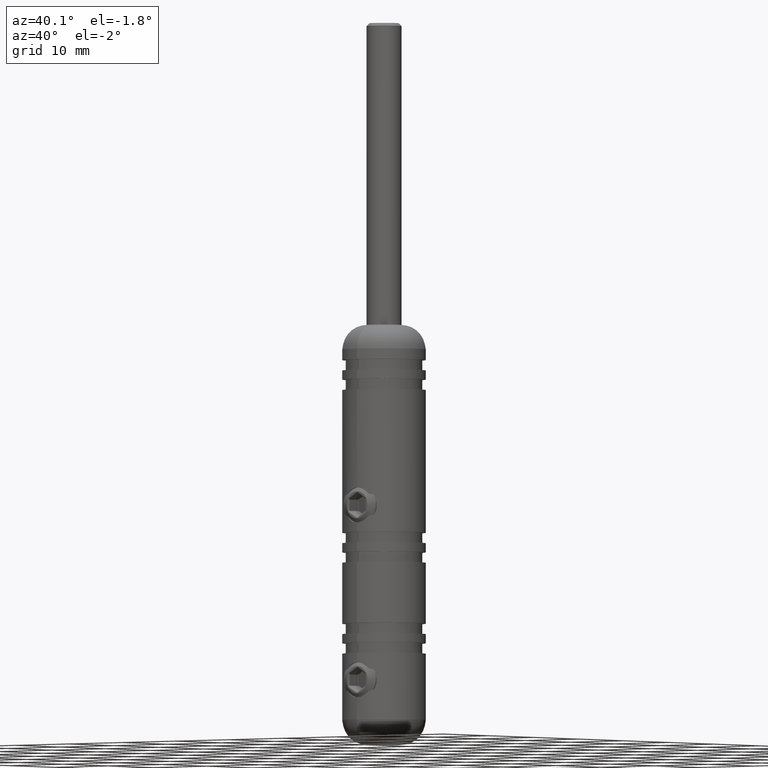
[diagram: clean part render]
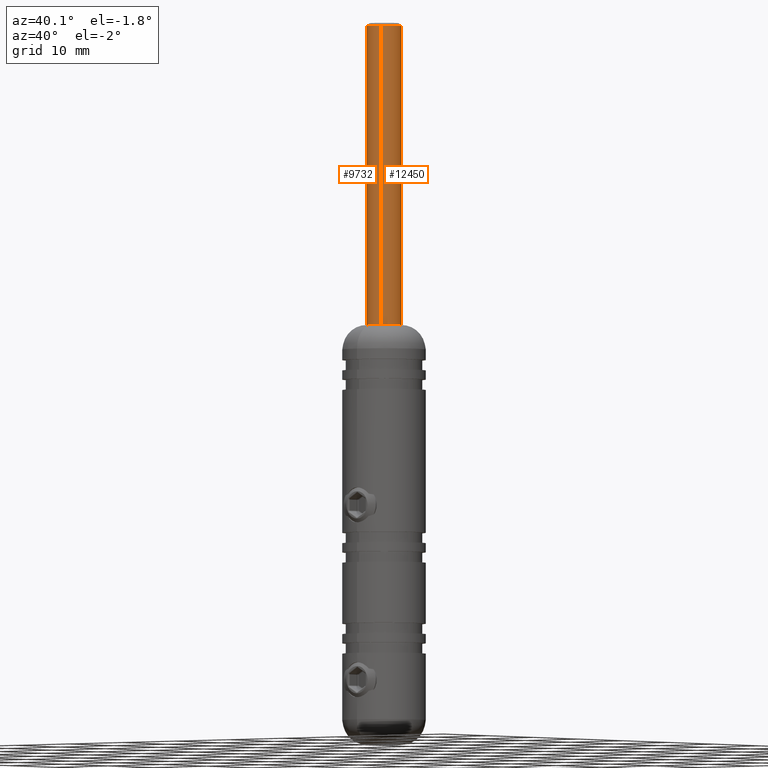
[diagram: same view with one multi-face feature highlighted, each face labeled with its STEP entity id]
A machine part, auxiliary view. The highlighted faces form ONE feature: a constant-radius fillet chain: 2 tangent blend faces with common blend radius 2.5 mm. The faces share edges in the B-rep.
Their STEP definitions:
[1] entity #12450 (Cylinder):
#819 = VERTEX_POINT ( 'NONE', #16076 ) ;
#853 = VERTEX_POINT ( 'NONE', #15140 ) ;
#1014 = DIRECTION ( 'NONE',  ( 1.000000000000000000, 0.0000000000000000000, 0.0000000000000000000 ) ) ;
#1391 = ORIENTED_EDGE ( 'NONE', *, *, #16331, .T. ) ;
#1557 = CARTESIAN_POINT ( 'NONE',  ( 2.499999999999995100, 0.0000000000000000000, -58.74999999999968000 ) ) ;
#1652 = DIRECTION ( 'NONE',  ( -1.000000000000000000, 0.0000000000000000000, 0.0000000000000000000 ) ) ;
#1855 = FACE_OUTER_BOUND ( 'NONE', #2814, .T. ) ;
#1884 = EDGE_CURVE ( 'NONE', #13728, #3763, #8892, .T. ) ;
#2554 = LINE ( 'NONE', #5790, #5568 ) ;
#2814 = EDGE_LOOP ( 'NONE', ( #9331, #1391, #12758, #15391 ) ) ;
#3095 = LINE ( 'NONE', #5102, #7254 ) ;
#3763 = VERTEX_POINT ( 'NONE', #15851 ) ;
#4789 = DIRECTION ( 'NONE',  ( 0.0000000000000000000, 0.0000000000000000000, 1.000000000000000000 ) ) ;
#5102 = CARTESIAN_POINT ( 'NONE',  ( 2.499999999999995100, 0.0000000000000000000, 0.0000000000000000000 ) ) ;
#5568 = VECTOR ( 'NONE', #14694, 1000.000000000000000 ) ;
#5790 = CARTESIAN_POINT ( 'NONE',  ( -2.499999999999995100, 3.061616997868361000E-016, 0.0000000000000000000 ) ) ;
#6195 = AXIS2_PLACEMENT_3D ( 'NONE', #7397, #4789, #1014 ) ;
#6248 = CYLINDRICAL_SURFACE ( 'NONE', #6195, 2.499999999999995100 ) ;
#6485 = EDGE_CURVE ( 'NONE', #13728, #853, #3095, .T. ) ;
#6708 = DIRECTION ( 'NONE',  ( 1.000000000000000000, 0.0000000000000000000, 0.0000000000000000000 ) ) ;
#7254 = VECTOR ( 'NONE', #9258, 1000.000000000000000 ) ;
#7397 = CARTESIAN_POINT ( 'NONE',  ( 0.0000000000000000000, 0.0000000000000000000, 0.0000000000000000000 ) ) ;
#8892 = CIRCLE ( 'NONE', #10631, 2.499999999999995100 ) ;
#9175 = DIRECTION ( 'NONE',  ( 0.0000000000000000000, 0.0000000000000000000, 1.000000000000000000 ) ) ;
#9258 = DIRECTION ( 'NONE',  ( 0.0000000000000000000, 0.0000000000000000000, 1.000000000000000000 ) ) ;
#9331 = ORIENTED_EDGE ( 'NONE', *, *, #1884, .T. ) ;
#10631 = AXIS2_PLACEMENT_3D ( 'NONE', #14321, #9175, #6708 ) ;
#12450 = ADVANCED_FACE ( 'NONE', ( #1855 ), #6248, .T. ) ;
#12758 = ORIENTED_EDGE ( 'NONE', *, *, #15458, .T. ) ;
#13162 = CARTESIAN_POINT ( 'NONE',  ( 0.0000000000000000000, 0.0000000000000000000, -0.3999999999999975800 ) ) ;
#13220 = DIRECTION ( 'NONE',  ( 0.0000000000000000000, 0.0000000000000000000, -1.000000000000000000 ) ) ;
#13728 = VERTEX_POINT ( 'NONE', #1557 ) ;
#14321 = CARTESIAN_POINT ( 'NONE',  ( 0.0000000000000000000, 0.0000000000000000000, -58.74999999999968000 ) ) ;
#14694 = DIRECTION ( 'NONE',  ( 0.0000000000000000000, 0.0000000000000000000, 1.000000000000000000 ) ) ;
#15085 = AXIS2_PLACEMENT_3D ( 'NONE', #13162, #13220, #1652 ) ;
#15140 = CARTESIAN_POINT ( 'NONE',  ( 2.500000000000000400, 0.0000000000000000000, -0.3999999999999975800 ) ) ;
#15391 = ORIENTED_EDGE ( 'NONE', *, *, #6485, .F. ) ;
#15458 = EDGE_CURVE ( 'NONE', #819, #853, #15774, .T. ) ;
#15774 = CIRCLE ( 'NONE', #15085, 2.499999999999995100 ) ;
#15851 = CARTESIAN_POINT ( 'NONE',  ( -2.500000000000000400, 3.061616997868366900E-016, -58.74999999999968000 ) ) ;
#16076 = CARTESIAN_POINT ( 'NONE',  ( -2.500000000000000400, 3.061616997868366900E-016, -0.3999999999999975800 ) ) ;
#16331 = EDGE_CURVE ( 'NONE', #3763, #819, #2554, .T. ) ;
[2] entity #9732 (Cylinder):
#528 = DIRECTION ( 'NONE',  ( 0.0000000000000000000, 0.0000000000000000000, -1.000000000000000000 ) ) ;
#733 = ORIENTED_EDGE ( 'NONE', *, *, #6485, .T. ) ;
#819 = VERTEX_POINT ( 'NONE', #16076 ) ;
#853 = VERTEX_POINT ( 'NONE', #15140 ) ;
#1216 = ORIENTED_EDGE ( 'NONE', *, *, #2615, .T. ) ;
#1557 = CARTESIAN_POINT ( 'NONE',  ( 2.499999999999995100, 0.0000000000000000000, -58.74999999999968000 ) ) ;
#1847 = CARTESIAN_POINT ( 'NONE',  ( 0.0000000000000000000, 0.0000000000000000000, -0.3999999999999975800 ) ) ;
#2020 = DIRECTION ( 'NONE',  ( 1.000000000000000000, 0.0000000000000000000, 0.0000000000000000000 ) ) ;
#2431 = CARTESIAN_POINT ( 'NONE',  ( 0.0000000000000000000, 0.0000000000000000000, -58.74999999999968000 ) ) ;
#2554 = LINE ( 'NONE', #5790, #5568 ) ;
#2615 = EDGE_CURVE ( 'NONE', #3763, #13728, #5950, .T. ) ;
#3095 = LINE ( 'NONE', #5102, #7254 ) ;
#3137 = DIRECTION ( 'NONE',  ( -1.000000000000000000, 0.0000000000000000000, 0.0000000000000000000 ) ) ;
#3763 = VERTEX_POINT ( 'NONE', #15851 ) ;
#4367 = CARTESIAN_POINT ( 'NONE',  ( 0.0000000000000000000, 0.0000000000000000000, 0.0000000000000000000 ) ) ;
#5102 = CARTESIAN_POINT ( 'NONE',  ( 2.499999999999995100, 0.0000000000000000000, 0.0000000000000000000 ) ) ;
#5568 = VECTOR ( 'NONE', #14694, 1000.000000000000000 ) ;
#5600 = EDGE_LOOP ( 'NONE', ( #13364, #1216, #733, #14014 ) ) ;
#5790 = CARTESIAN_POINT ( 'NONE',  ( -2.499999999999995100, 3.061616997868361000E-016, 0.0000000000000000000 ) ) ;
#5950 = CIRCLE ( 'NONE', #11154, 2.499999999999995100 ) ;
#6260 = CYLINDRICAL_SURFACE ( 'NONE', #14466, 2.499999999999995100 ) ;
#6485 = EDGE_CURVE ( 'NONE', #13728, #853, #3095, .T. ) ;
#7179 = AXIS2_PLACEMENT_3D ( 'NONE', #1847, #528, #3137 ) ;
#7254 = VECTOR ( 'NONE', #9258, 1000.000000000000000 ) ;
#8241 = CIRCLE ( 'NONE', #7179, 2.499999999999995100 ) ;
#9258 = DIRECTION ( 'NONE',  ( 0.0000000000000000000, 0.0000000000000000000, 1.000000000000000000 ) ) ;
#9451 = EDGE_CURVE ( 'NONE', #853, #819, #8241, .T. ) ;
#9650 = DIRECTION ( 'NONE',  ( 0.0000000000000000000, 0.0000000000000000000, 1.000000000000000000 ) ) ;
#9732 = ADVANCED_FACE ( 'NONE', ( #12419 ), #6260, .T. ) ;
#9940 = DIRECTION ( 'NONE',  ( 1.000000000000000000, 0.0000000000000000000, 0.0000000000000000000 ) ) ;
#11154 = AXIS2_PLACEMENT_3D ( 'NONE', #2431, #13011, #9940 ) ;
#12419 = FACE_OUTER_BOUND ( 'NONE', #5600, .T. ) ;
#13011 = DIRECTION ( 'NONE',  ( 0.0000000000000000000, 0.0000000000000000000, 1.000000000000000000 ) ) ;
#13364 = ORIENTED_EDGE ( 'NONE', *, *, #16331, .F. ) ;
#13728 = VERTEX_POINT ( 'NONE', #1557 ) ;
#14014 = ORIENTED_EDGE ( 'NONE', *, *, #9451, .T. ) ;
#14466 = AXIS2_PLACEMENT_3D ( 'NONE', #4367, #9650, #2020 ) ;
#14694 = DIRECTION ( 'NONE',  ( 0.0000000000000000000, 0.0000000000000000000, 1.000000000000000000 ) ) ;
#15140 = CARTESIAN_POINT ( 'NONE',  ( 2.500000000000000400, 0.0000000000000000000, -0.3999999999999975800 ) ) ;
#15851 = CARTESIAN_POINT ( 'NONE',  ( -2.500000000000000400, 3.061616997868366900E-016, -58.74999999999968000 ) ) ;
#16076 = CARTESIAN_POINT ( 'NONE',  ( -2.500000000000000400, 3.061616997868366900E-016, -0.3999999999999975800 ) ) ;
#16331 = EDGE_CURVE ( 'NONE', #3763, #819, #2554, .T. ) ;